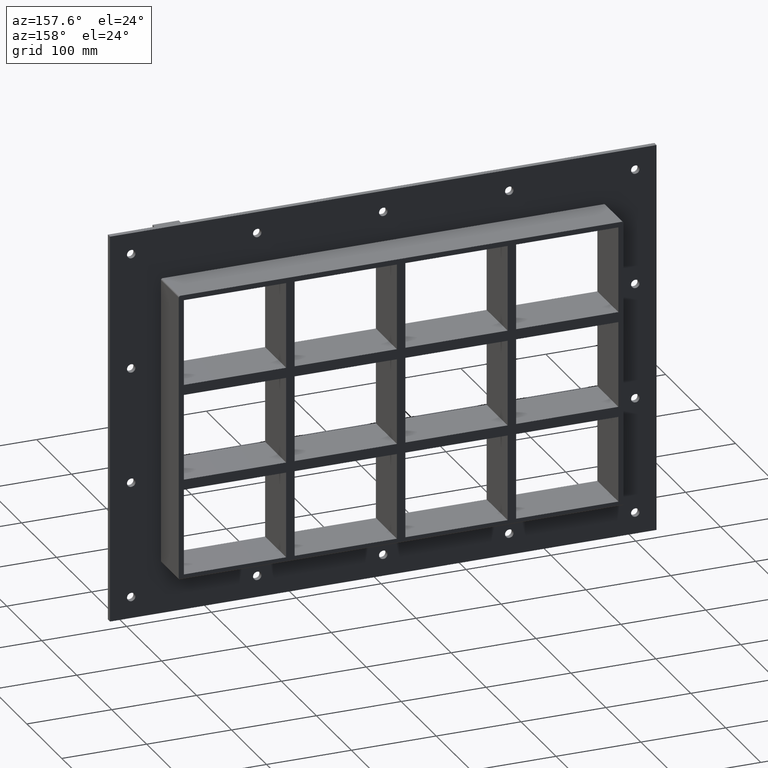
[diagram: clean part render]
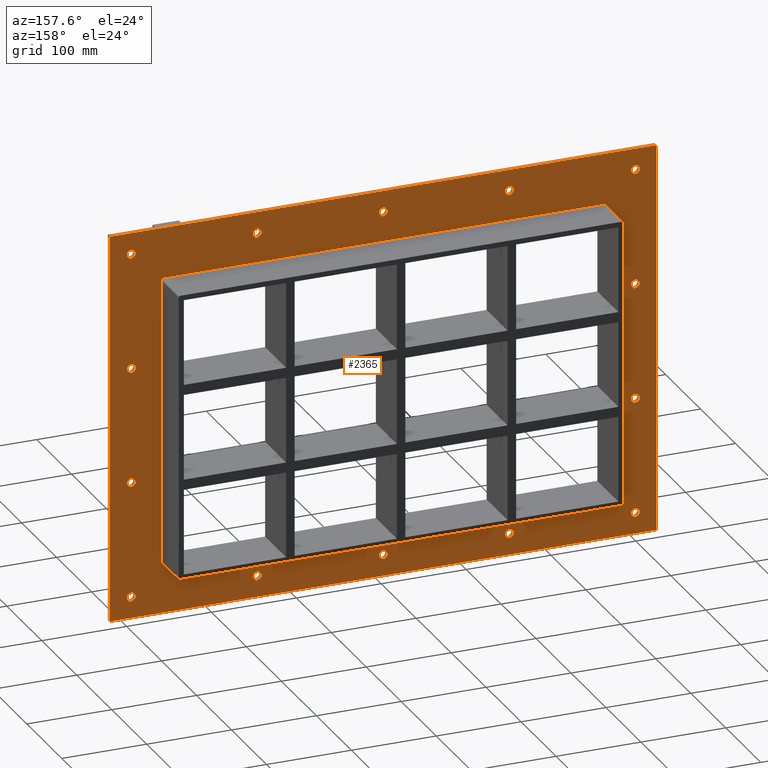
[diagram: same view with one face highlighted and labeled with its STEP entity id]
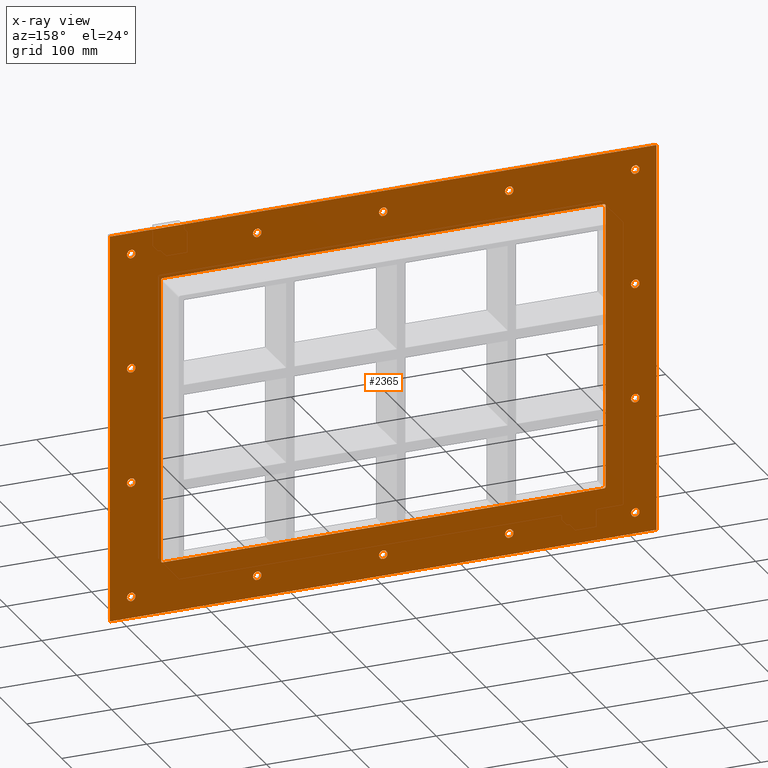
[diagram: x-ray of the same camera — body ghosted, the highlighted face saturated]
A machine part, auxiliary view. The second image highlights one B-rep face of the part: STEP entity #2365.
The next image is the same camera in x-ray: the body ghosted, the highlighted face saturated — about 0% of this face is hidden behind the body in this view.
In plain terms, the highlighted planar face has unit normal (0, 1, 0).
Its self-contained STEP definition (entity closure, byte-faithful):
#73=CARTESIAN_POINT('',(-302.00000000000023,5.999999999999943,-204.5));
#74=VERTEX_POINT('',#73);
#75=CARTESIAN_POINT('',(-297.00000000000023,5.999999999999943,-204.5));
#76=DIRECTION('',(0.0,-1.0,0.0));
#77=DIRECTION('',(1.0,0.0,0.0));
#78=AXIS2_PLACEMENT_3D('',#75,#76,#77);
#79=CIRCLE('',#78,5.0);
#80=EDGE_CURVE('',#74,#74,#79,.T.);
#101=CARTESIAN_POINT('',(291.99999999999983,5.999999999999943,-68.19999999999996));
#102=VERTEX_POINT('',#101);
#103=CARTESIAN_POINT('',(296.99999999999983,5.999999999999943,-68.19999999999996));
#104=DIRECTION('',(0.0,-1.0,0.0));
#105=DIRECTION('',(1.0,0.0,0.0));
#106=AXIS2_PLACEMENT_3D('',#103,#104,#105);
#107=CIRCLE('',#106,5.0);
#108=EDGE_CURVE('',#102,#102,#107,.T.);
#129=CARTESIAN_POINT('',(-302.00000000000023,5.999999999999943,-68.19999999999996));
#130=VERTEX_POINT('',#129);
#131=CARTESIAN_POINT('',(-297.00000000000023,5.999999999999943,-68.19999999999996));
#132=DIRECTION('',(0.0,-1.0,0.0));
#133=DIRECTION('',(1.0,0.0,0.0));
#134=AXIS2_PLACEMENT_3D('',#131,#132,#133);
#135=CIRCLE('',#134,5.0);
#136=EDGE_CURVE('',#130,#130,#135,.T.);
#157=CARTESIAN_POINT('',(291.99999999999983,5.999999999999943,68.100000000000051));
#158=VERTEX_POINT('',#157);
#159=CARTESIAN_POINT('',(296.99999999999983,5.999999999999943,68.100000000000051));
#160=DIRECTION('',(0.0,-1.0,0.0));
#161=DIRECTION('',(1.0,0.0,0.0));
#162=AXIS2_PLACEMENT_3D('',#159,#160,#161);
#163=CIRCLE('',#162,5.0);
#164=EDGE_CURVE('',#158,#158,#163,.T.);
#185=CARTESIAN_POINT('',(-302.00000000000023,5.999999999999943,68.100000000000051));
#186=VERTEX_POINT('',#185);
#187=CARTESIAN_POINT('',(-297.00000000000023,5.999999999999943,68.100000000000051));
#188=DIRECTION('',(0.0,-1.0,0.0));
#189=DIRECTION('',(1.0,0.0,0.0));
#190=AXIS2_PLACEMENT_3D('',#187,#188,#189);
#191=CIRCLE('',#190,5.0);
#192=EDGE_CURVE('',#186,#186,#191,.T.);
#213=CARTESIAN_POINT('',(-153.5000000000002,5.999999999999943,204.40000000000009));
#214=VERTEX_POINT('',#213);
#215=CARTESIAN_POINT('',(-148.5000000000002,5.999999999999943,204.40000000000009));
#216=DIRECTION('',(0.0,-1.0,0.0));
#217=DIRECTION('',(1.0,0.0,0.0));
#218=AXIS2_PLACEMENT_3D('',#215,#216,#217);
#219=CIRCLE('',#218,5.0);
#220=EDGE_CURVE('',#214,#214,#219,.T.);
#241=CARTESIAN_POINT('',(-153.50000000000017,5.999999999999943,-204.49999999999994));
#242=VERTEX_POINT('',#241);
#243=CARTESIAN_POINT('',(-148.50000000000017,5.999999999999943,-204.49999999999994));
#244=DIRECTION('',(0.0,-1.0,0.0));
#245=DIRECTION('',(1.0,0.0,0.0));
#246=AXIS2_PLACEMENT_3D('',#243,#244,#245);
#247=CIRCLE('',#246,5.0);
#248=EDGE_CURVE('',#242,#242,#247,.T.);
#269=CARTESIAN_POINT('',(-5.000000000000178,5.999999999999943,204.40000000000009));
#270=VERTEX_POINT('',#269);
#271=CARTESIAN_POINT('',(-1.776357E-013,5.999999999999943,204.40000000000009));
#272=DIRECTION('',(0.0,-1.0,0.0));
#273=DIRECTION('',(1.0,0.0,0.0));
#274=AXIS2_PLACEMENT_3D('',#271,#272,#273);
#275=CIRCLE('',#274,5.0);
#276=EDGE_CURVE('',#270,#270,#275,.T.);
#297=CARTESIAN_POINT('',(-5.000000000000142,5.999999999999943,-204.49999999999994));
#298=VERTEX_POINT('',#297);
#299=CARTESIAN_POINT('',(-1.421085E-013,5.999999999999943,-204.49999999999994));
#300=DIRECTION('',(0.0,-1.0,0.0));
#301=DIRECTION('',(1.0,0.0,0.0));
#302=AXIS2_PLACEMENT_3D('',#299,#300,#301);
#303=CIRCLE('',#302,5.0);
#304=EDGE_CURVE('',#298,#298,#303,.T.);
#325=CARTESIAN_POINT('',(143.49999999999983,5.999999999999943,204.40000000000009));
#326=VERTEX_POINT('',#325);
#327=CARTESIAN_POINT('',(148.49999999999983,5.999999999999943,204.40000000000009));
#328=DIRECTION('',(0.0,-1.0,0.0));
#329=DIRECTION('',(1.0,0.0,0.0));
#330=AXIS2_PLACEMENT_3D('',#327,#328,#329);
#331=CIRCLE('',#330,5.0);
#332=EDGE_CURVE('',#326,#326,#331,.T.);
#353=CARTESIAN_POINT('',(143.49999999999989,5.999999999999943,-204.49999999999994));
#354=VERTEX_POINT('',#353);
#355=CARTESIAN_POINT('',(148.49999999999989,5.999999999999943,-204.49999999999994));
#356=DIRECTION('',(0.0,-1.0,0.0));
#357=DIRECTION('',(1.0,0.0,0.0));
#358=AXIS2_PLACEMENT_3D('',#355,#356,#357);
#359=CIRCLE('',#358,5.0);
#360=EDGE_CURVE('',#354,#354,#359,.T.);
#381=CARTESIAN_POINT('',(291.99999999999989,5.999999999999943,-204.49999999999994));
#382=VERTEX_POINT('',#381);
#383=CARTESIAN_POINT('',(296.99999999999989,5.999999999999943,-204.49999999999994));
#384=DIRECTION('',(0.0,-1.0,0.0));
#385=DIRECTION('',(1.0,0.0,0.0));
#386=AXIS2_PLACEMENT_3D('',#383,#384,#385);
#387=CIRCLE('',#386,5.0);
#388=EDGE_CURVE('',#382,#382,#387,.T.);
#409=CARTESIAN_POINT('',(-302.00000000000023,5.999999999999943,204.40000000000009));
#410=VERTEX_POINT('',#409);
#411=CARTESIAN_POINT('',(-297.00000000000023,5.999999999999943,204.40000000000009));
#412=DIRECTION('',(0.0,-1.0,0.0));
#413=DIRECTION('',(1.0,0.0,0.0));
#414=AXIS2_PLACEMENT_3D('',#411,#412,#413);
#415=CIRCLE('',#414,5.0);
#416=EDGE_CURVE('',#410,#410,#415,.T.);
#437=CARTESIAN_POINT('',(291.99999999999983,5.999999999999943,204.40000000000009));
#438=VERTEX_POINT('',#437);
#439=CARTESIAN_POINT('',(296.99999999999983,5.999999999999943,204.40000000000009));
#440=DIRECTION('',(0.0,-1.0,0.0));
#441=DIRECTION('',(1.0,0.0,0.0));
#442=AXIS2_PLACEMENT_3D('',#439,#440,#441);
#443=CIRCLE('',#442,5.0);
#444=EDGE_CURVE('',#438,#438,#443,.T.);
#2214=CARTESIAN_POINT('',(-3.865146E-014,6.000000000000001,3.831326E-014));
#2215=DIRECTION('',(0.0,1.0,0.0));
#2216=DIRECTION('',(0.0,0.0,1.0));
#2217=AXIS2_PLACEMENT_3D('',#2214,#2215,#2216);
#2218=PLANE('',#2217);
#2219=CARTESIAN_POINT('',(-322.0,6.000000000000001,229.50000000000003));
#2220=VERTEX_POINT('',#2219);
#2221=CARTESIAN_POINT('',(322.0,6.000000000000001,229.50000000000003));
#2222=VERTEX_POINT('',#2221);
#2223=CARTESIAN_POINT('',(-322.0,6.000000000000001,229.50000000000003));
#2224=DIRECTION('',(1.0,0.0,0.0));
#2225=VECTOR('',#2224,644.0);
#2226=LINE('',#2223,#2225);
#2227=EDGE_CURVE('',#2220,#2222,#2226,.T.);
#2228=ORIENTED_EDGE('',*,*,#2227,.T.);
#2229=CARTESIAN_POINT('',(322.0,6.000000000000001,-229.49999999999994));
#2230=VERTEX_POINT('',#2229);
#2231=CARTESIAN_POINT('',(321.99999999999994,6.000000000000001,229.50000000000003));
#2232=DIRECTION('',(0.0,0.0,-1.0));
#2233=VECTOR('',#2232,459.0);
#2234=LINE('',#2231,#2233);
#2235=EDGE_CURVE('',#2222,#2230,#2234,.T.);
#2236=ORIENTED_EDGE('',*,*,#2235,.T.);
#2237=CARTESIAN_POINT('',(-322.0,6.000000000000001,-229.49999999999994));
#2238=VERTEX_POINT('',#2237);
#2239=CARTESIAN_POINT('',(321.99999999999994,6.000000000000001,-229.49999999999994));
#2240=DIRECTION('',(-1.0,0.0,0.0));
#2241=VECTOR('',#2240,644.0);
#2242=LINE('',#2239,#2241);
#2243=EDGE_CURVE('',#2230,#2238,#2242,.T.);
#2244=ORIENTED_EDGE('',*,*,#2243,.T.);
#2245=CARTESIAN_POINT('',(-322.0,6.000000000000001,-229.49999999999994));
#2246=DIRECTION('',(0.0,0.0,1.0));
#2247=VECTOR('',#2246,459.0);
#2248=LINE('',#2245,#2247);
#2249=EDGE_CURVE('',#2238,#2220,#2248,.T.);
#2250=ORIENTED_EDGE('',*,*,#2249,.T.);
#2251=EDGE_LOOP('',(#2228,#2236,#2244,#2250));
#2252=FACE_OUTER_BOUND('',#2251,.T.);
#2253=ORIENTED_EDGE('',*,*,#80,.T.);
#2254=EDGE_LOOP('',(#2253));
#2255=FACE_BOUND('',#2254,.T.);
#2256=ORIENTED_EDGE('',*,*,#108,.T.);
#2257=EDGE_LOOP('',(#2256));
#2258=FACE_BOUND('',#2257,.T.);
#2259=ORIENTED_EDGE('',*,*,#136,.T.);
#2260=EDGE_LOOP('',(#2259));
#2261=FACE_BOUND('',#2260,.T.);
#2262=ORIENTED_EDGE('',*,*,#164,.T.);
#2263=EDGE_LOOP('',(#2262));
#2264=FACE_BOUND('',#2263,.T.);
#2265=ORIENTED_EDGE('',*,*,#192,.T.);
#2266=EDGE_LOOP('',(#2265));
#2267=FACE_BOUND('',#2266,.T.);
#2268=ORIENTED_EDGE('',*,*,#220,.T.);
#2269=EDGE_LOOP('',(#2268));
#2270=FACE_BOUND('',#2269,.T.);
#2271=ORIENTED_EDGE('',*,*,#248,.T.);
#2272=EDGE_LOOP('',(#2271));
#2273=FACE_BOUND('',#2272,.T.);
#2274=ORIENTED_EDGE('',*,*,#276,.T.);
#2275=EDGE_LOOP('',(#2274));
#2276=FACE_BOUND('',#2275,.T.);
#2277=ORIENTED_EDGE('',*,*,#304,.T.);
#2278=EDGE_LOOP('',(#2277));
#2279=FACE_BOUND('',#2278,.T.);
#2280=ORIENTED_EDGE('',*,*,#332,.T.);
#2281=EDGE_LOOP('',(#2280));
#2282=FACE_BOUND('',#2281,.T.);
#2283=ORIENTED_EDGE('',*,*,#360,.T.);
#2284=EDGE_LOOP('',(#2283));
#2285=FACE_BOUND('',#2284,.T.);
#2286=ORIENTED_EDGE('',*,*,#388,.T.);
#2287=EDGE_LOOP('',(#2286));
#2288=FACE_BOUND('',#2287,.T.);
#2289=ORIENTED_EDGE('',*,*,#416,.T.);
#2290=EDGE_LOOP('',(#2289));
#2291=FACE_BOUND('',#2290,.T.);
#2292=ORIENTED_EDGE('',*,*,#444,.T.);
#2293=EDGE_LOOP('',(#2292));
#2294=FACE_BOUND('',#2293,.T.);
#2295=CARTESIAN_POINT('',(-262.0,6.000000000000001,167.5));
#2296=VERTEX_POINT('',#2295);
#2297=CARTESIAN_POINT('',(-260.0,6.000000000000001,169.50000000000003));
#2298=VERTEX_POINT('',#2297);
#2299=CARTESIAN_POINT('',(-260.0,6.000000000000001,167.5));
#2300=DIRECTION('',(0.0,1.0,0.0));
#2301=DIRECTION('',(-0.707106781186548,0.0,0.707106781186548));
#2302=AXIS2_PLACEMENT_3D('',#2299,#2300,#2301);
#2303=CIRCLE('',#2302,2.0);
#2304=EDGE_CURVE('',#2296,#2298,#2303,.T.);
#2305=ORIENTED_EDGE('',*,*,#2304,.F.);
#2306=CARTESIAN_POINT('',(-262.0,6.000000000000001,-167.5));
#2307=VERTEX_POINT('',#2306);
#2308=CARTESIAN_POINT('',(-262.0,6.000000000000001,-167.5));
#2309=DIRECTION('',(0.0,0.0,1.0));
#2310=VECTOR('',#2309,335.0);
#2311=LINE('',#2308,#2310);
#2312=EDGE_CURVE('',#2307,#2296,#2311,.T.);
#2313=ORIENTED_EDGE('',*,*,#2312,.F.);
#2314=CARTESIAN_POINT('',(-260.0,6.000000000000001,-169.50000000000003));
#2315=VERTEX_POINT('',#2314);
#2316=CARTESIAN_POINT('',(-260.0,6.000000000000001,-167.5));
#2317=DIRECTION('',(0.0,1.0,0.0));
#2318=DIRECTION('',(-0.707106781186548,0.0,-0.707106781186548));
#2319=AXIS2_PLACEMENT_3D('',#2316,#2317,#2318);
#2320=CIRCLE('',#2319,2.0);
#2321=EDGE_CURVE('',#2315,#2307,#2320,.T.);
#2322=ORIENTED_EDGE('',*,*,#2321,.F.);
#2323=CARTESIAN_POINT('',(260.0,6.000000000000001,-169.50000000000003));
#2324=VERTEX_POINT('',#2323);
#2325=CARTESIAN_POINT('',(260.0,6.000000000000001,-169.50000000000003));
#2326=DIRECTION('',(-1.0,0.0,0.0));
#2327=VECTOR('',#2326,520.0);
#2328=LINE('',#2325,#2327);
#2329=EDGE_CURVE('',#2324,#2315,#2328,.T.);
#2330=ORIENTED_EDGE('',*,*,#2329,.F.);
#2331=CARTESIAN_POINT('',(262.0,6.000000000000001,-167.5));
#2332=VERTEX_POINT('',#2331);
#2333=CARTESIAN_POINT('',(260.0,6.000000000000001,-167.5));
#2334=DIRECTION('',(0.0,1.0,0.0));
#2335=DIRECTION('',(0.707106781186548,0.0,-0.707106781186548));
#2336=AXIS2_PLACEMENT_3D('',#2333,#2334,#2335);
#2337=CIRCLE('',#2336,2.0);
#2338=EDGE_CURVE('',#2332,#2324,#2337,.T.);
#2339=ORIENTED_EDGE('',*,*,#2338,.F.);
#2340=CARTESIAN_POINT('',(262.0,6.000000000000001,167.50000000000003));
#2341=VERTEX_POINT('',#2340);
#2342=CARTESIAN_POINT('',(262.0,6.000000000000001,167.50000000000003));
#2343=DIRECTION('',(0.0,0.0,-1.0));
#2344=VECTOR('',#2343,335.0);
#2345=LINE('',#2342,#2344);
#2346=EDGE_CURVE('',#2341,#2332,#2345,.T.);
#2347=ORIENTED_EDGE('',*,*,#2346,.F.);
#2348=CARTESIAN_POINT('',(260.0,6.000000000000001,169.50000000000003));
#2349=VERTEX_POINT('',#2348);
#2350=CARTESIAN_POINT('',(260.0,6.000000000000001,167.50000000000003));
#2351=DIRECTION('',(0.0,1.0,0.0));
#2352=DIRECTION('',(0.70710678118656,0.0,0.707106781186535));
#2353=AXIS2_PLACEMENT_3D('',#2350,#2351,#2352);
#2354=CIRCLE('',#2353,2.0);
#2355=EDGE_CURVE('',#2349,#2341,#2354,.T.);
#2356=ORIENTED_EDGE('',*,*,#2355,.F.);
#2357=CARTESIAN_POINT('',(-260.0,6.000000000000001,169.50000000000003));
#2358=DIRECTION('',(1.0,0.0,0.0));
#2359=VECTOR('',#2358,520.0);
#2360=LINE('',#2357,#2359);
#2361=EDGE_CURVE('',#2298,#2349,#2360,.T.);
#2362=ORIENTED_EDGE('',*,*,#2361,.F.);
#2363=EDGE_LOOP('',(#2305,#2313,#2322,#2330,#2339,#2347,#2356,#2362));
#2364=FACE_BOUND('',#2363,.T.);
#2365=ADVANCED_FACE('',(#2252,#2255,#2258,#2261,#2264,#2267,#2270,#2273,#2276,#2279,#2282,#2285,#2288,#2291,#2294,#2364),#2218,.T.);